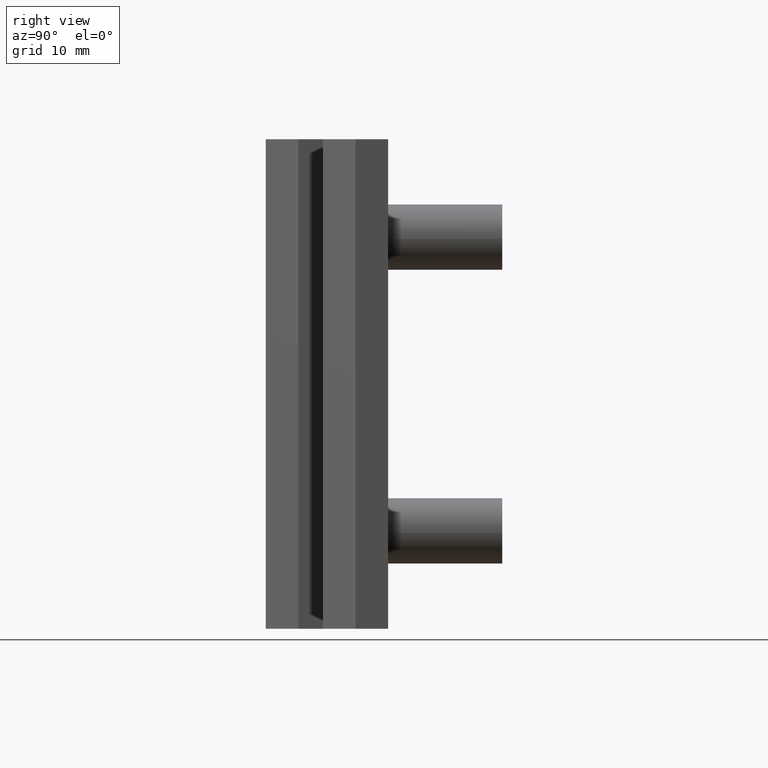
[diagram: clean part render]
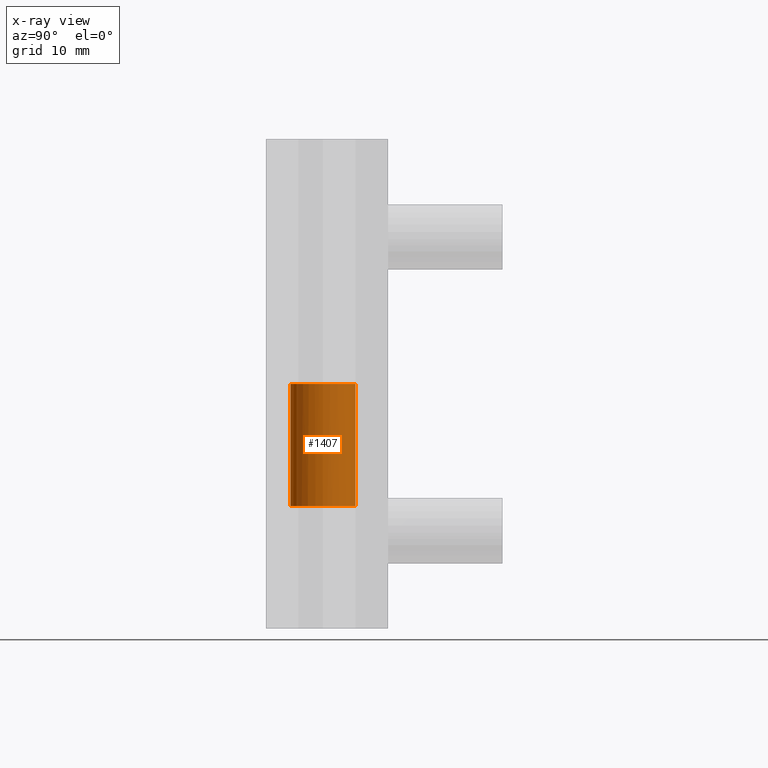
[diagram: x-ray — body ghosted, one internal face saturated and labeled with its STEP entity id]
A machine part, right view, then the same camera in x-ray: the body is ghosted and one INTERNAL B-rep face — a face not visible from any outside direction — is saturated and labeled: STEP entity #1407.
In plain terms, the highlighted face is a freeform B-spline surface patch.
Its self-contained STEP definition (entity closure, byte-faithful):
#1240=CARTESIAN_POINT('',(0.496506193032282,3.969065582759469,30.0));
#1241=VERTEX_POINT('',#1240);
#1257=CARTESIAN_POINT('',(0.496512008376212,3.969064855294977,15.000000000025670));
#1258=VERTEX_POINT('',#1257);
#1259=CARTESIAN_POINT('',(0.496506193032282,3.969065582759469,30.0));
#1260=CARTESIAN_POINT('',(0.496512008376212,3.969064855294977,15.000000000025670));
#1261=QUASI_UNIFORM_CURVE('',1,(#1259,#1260),.UNSPECIFIED.,.F.,.U.);
#1262=EDGE_CURVE('',#1241,#1258,#1261,.T.);
#1279=CARTESIAN_POINT('',(-0.034906142137383,-3.999847692255479,15.000000000026130));
#1280=VERTEX_POINT('',#1279);
#1296=CARTESIAN_POINT('',(-0.034906142152175,-3.999847692255350,30.0));
#1297=VERTEX_POINT('',#1296);
#1298=CARTESIAN_POINT('',(-0.034906142152175,-3.999847692255350,30.0));
#1299=CARTESIAN_POINT('',(-0.034906142137383,-3.999847692255479,15.000000000026130));
#1300=QUASI_UNIFORM_CURVE('',1,(#1298,#1299),.UNSPECIFIED.,.F.,.U.);
#1301=EDGE_CURVE('',#1297,#1280,#1300,.T.);
#1321=CARTESIAN_POINT('',(-0.034906141993581,-3.999847692256734,30.374999999999439));
#1322=CARTESIAN_POINT('',(-4.034753834250266,-3.964941550263238,30.374999999999446));
#1323=CARTESIAN_POINT('',(-3.999847692256769,0.034906141993446,30.374999999999439));
#1324=CARTESIAN_POINT('',(-3.964941550263275,4.034753834250129,30.374999999999446));
#1325=CARTESIAN_POINT('',(0.034906141993410,3.999847692256634,30.374999999999439));
#1326=CARTESIAN_POINT('',(0.266600635832609,3.997825725041053,30.374999999999435));
#1327=CARTESIAN_POINT('',(0.496512008319232,3.969064855302104,30.374999999999446));
#1328=CARTESIAN_POINT('',(-0.034906141993581,-3.999847692256734,14.615625000023201));
#1329=CARTESIAN_POINT('',(-4.034753834250266,-3.964941550263238,14.615625000023201));
#1330=CARTESIAN_POINT('',(-3.999847692256769,0.034906141993446,14.615625000023201));
#1331=CARTESIAN_POINT('',(-3.964941550263275,4.034753834250129,14.615625000023201));
#1332=CARTESIAN_POINT('',(0.034906141993410,3.999847692256634,14.615625000023201));
#1333=CARTESIAN_POINT('',(0.266600635832609,3.997825725041053,14.615625000023202));
#1334=CARTESIAN_POINT('',(0.496512008319232,3.969064855302104,14.615625000023197));
#1342=(BOUNDED_SURFACE()B_SPLINE_SURFACE(2,1,((#1321,#1328),(#1322,#1329),(#1323,#1330),(#1324,#1331),(#1325,#1332),(#1326,#1333),(#1327,#1334)),.UNSPECIFIED.,.F.,.F.,.U.)B_SPLINE_SURFACE_WITH_KNOTS((3,2,2,3),(2,2),(0.0,6.627416997969519,13.254833995939039,13.785027355776601),(0.0,15.759374999976240),.UNSPECIFIED.)GEOMETRIC_REPRESENTATION_ITEM()RATIONAL_B_SPLINE_SURFACE(((1.0,1.0),(0.707106781186548,0.707106781186548),(1.0,1.0),(0.707106781186548,0.707106781186548),(1.0,1.0),(0.976568542494924,0.976568542494924),(0.956886118190660,0.956886118190660)))REPRESENTATION_ITEM('')SURFACE());
#1343=CARTESIAN_POINT('',(-4.000000000000085,-4.973799E-014,30.0));
#1344=VERTEX_POINT('',#1343);
#1345=CARTESIAN_POINT('',(-4.000000000000085,-4.973799E-014,30.0));
#1346=CARTESIAN_POINT('',(-4.000000000000086,3.999999999999952,30.000000000000004));
#1347=CARTESIAN_POINT('',(-8.526513E-014,3.999999999999951,30.0));
#1348=CARTESIAN_POINT('',(0.249216768453565,3.999999999999950,30.000000000000004));
#1349=CARTESIAN_POINT('',(0.496506193032282,3.969065582759470,30.000000000000004));
#1357=(BOUNDED_CURVE()B_SPLINE_CURVE(2,(#1345,#1346,#1347,#1348,#1349),.UNSPECIFIED.,.F.,.U.)B_SPLINE_CURVE_WITH_KNOTS((3,2,3),(0.500000000000000,0.750000000000000,0.771473681878612),.UNSPECIFIED.)CURVE()GEOMETRIC_REPRESENTATION_ITEM()RATIONAL_B_SPLINE_CURVE((1.0,0.707106781186548,1.0,0.974842016779189,0.954005909785507))REPRESENTATION_ITEM(''));
#1358=EDGE_CURVE('',#1344,#1241,#1357,.T.);
#1359=ORIENTED_EDGE('',*,*,#1358,.F.);
#1360=CARTESIAN_POINT('',(-0.034906142152175,-3.999847692255350,29.999999999999993));
#1361=CARTESIAN_POINT('',(-4.000000000000085,-3.965244842065506,30.000000000000004));
#1362=CARTESIAN_POINT('',(-4.000000000000085,-4.973799E-014,30.0));
#1370=(BOUNDED_CURVE()B_SPLINE_CURVE(2,(#1360,#1361,#1362),.UNSPECIFIED.,.F.,.U.)B_SPLINE_CURVE_WITH_KNOTS((3,3),(0.251539894348955,0.500000000000000),.UNSPECIFIED.)CURVE()GEOMETRIC_REPRESENTATION_ITEM()RATIONAL_B_SPLINE_CURVE((0.996414028068080,0.708910879636540,1.0))REPRESENTATION_ITEM(''));
#1371=EDGE_CURVE('',#1297,#1344,#1370,.T.);
#1372=ORIENTED_EDGE('',*,*,#1371,.F.);
#1373=ORIENTED_EDGE('',*,*,#1301,.T.);
#1374=CARTESIAN_POINT('',(-4.000000000000085,-4.973799E-014,15.000000000029580));
#1375=VERTEX_POINT('',#1374);
#1376=CARTESIAN_POINT('',(-4.000000000000085,-4.973799E-014,15.000000000029580));
#1377=CARTESIAN_POINT('',(-4.000000000000084,-3.965244842094837,15.000000000029571));
#1378=CARTESIAN_POINT('',(-0.034906142137383,-3.999847692255479,15.000000000026128));
#1386=(BOUNDED_CURVE()B_SPLINE_CURVE(2,(#1376,#1377,#1378),.UNSPECIFIED.,.F.,.U.)B_SPLINE_CURVE_WITH_KNOTS((3,3),(0.0,0.248460105652348),.UNSPECIFIED.)CURVE()GEOMETRIC_REPRESENTATION_ITEM()RATIONAL_B_SPLINE_CURVE((1.0,0.708910879635014,0.996414028071095))REPRESENTATION_ITEM(''));
#1387=EDGE_CURVE('',#1375,#1280,#1386,.T.);
#1388=ORIENTED_EDGE('',*,*,#1387,.F.);
#1389=CARTESIAN_POINT('',(0.496512008376212,3.969064855294977,15.000000000025670));
#1390=CARTESIAN_POINT('',(0.249219710191539,3.999999999999950,15.000000000025883));
#1391=CARTESIAN_POINT('',(-8.526513E-014,3.999999999999951,15.000000000026100));
#1392=CARTESIAN_POINT('',(-4.000000000000086,3.999999999999952,15.000000000029580));
#1393=CARTESIAN_POINT('',(-4.000000000000085,-4.973799E-014,15.000000000029580));
#1401=(BOUNDED_CURVE()B_SPLINE_CURVE(2,(#1389,#1390,#1391,#1392,#1393),.UNSPECIFIED.,.F.,.U.)B_SPLINE_CURVE_WITH_KNOTS((3,2,3),(0.728526071024457,0.750000000000000,1.0),.UNSPECIFIED.)CURVE()GEOMETRIC_REPRESENTATION_ITEM()RATIONAL_B_SPLINE_CURVE((0.954005430265322,0.974841727287127,1.0,0.707106781186548,1.0))REPRESENTATION_ITEM(''));
#1402=EDGE_CURVE('',#1258,#1375,#1401,.T.);
#1403=ORIENTED_EDGE('',*,*,#1402,.F.);
#1404=ORIENTED_EDGE('',*,*,#1262,.F.);
#1405=EDGE_LOOP('',(#1359,#1372,#1373,#1388,#1403,#1404));
#1406=FACE_OUTER_BOUND('',#1405,.T.);
#1407=ADVANCED_FACE('',(#1406),#1342,.F.);